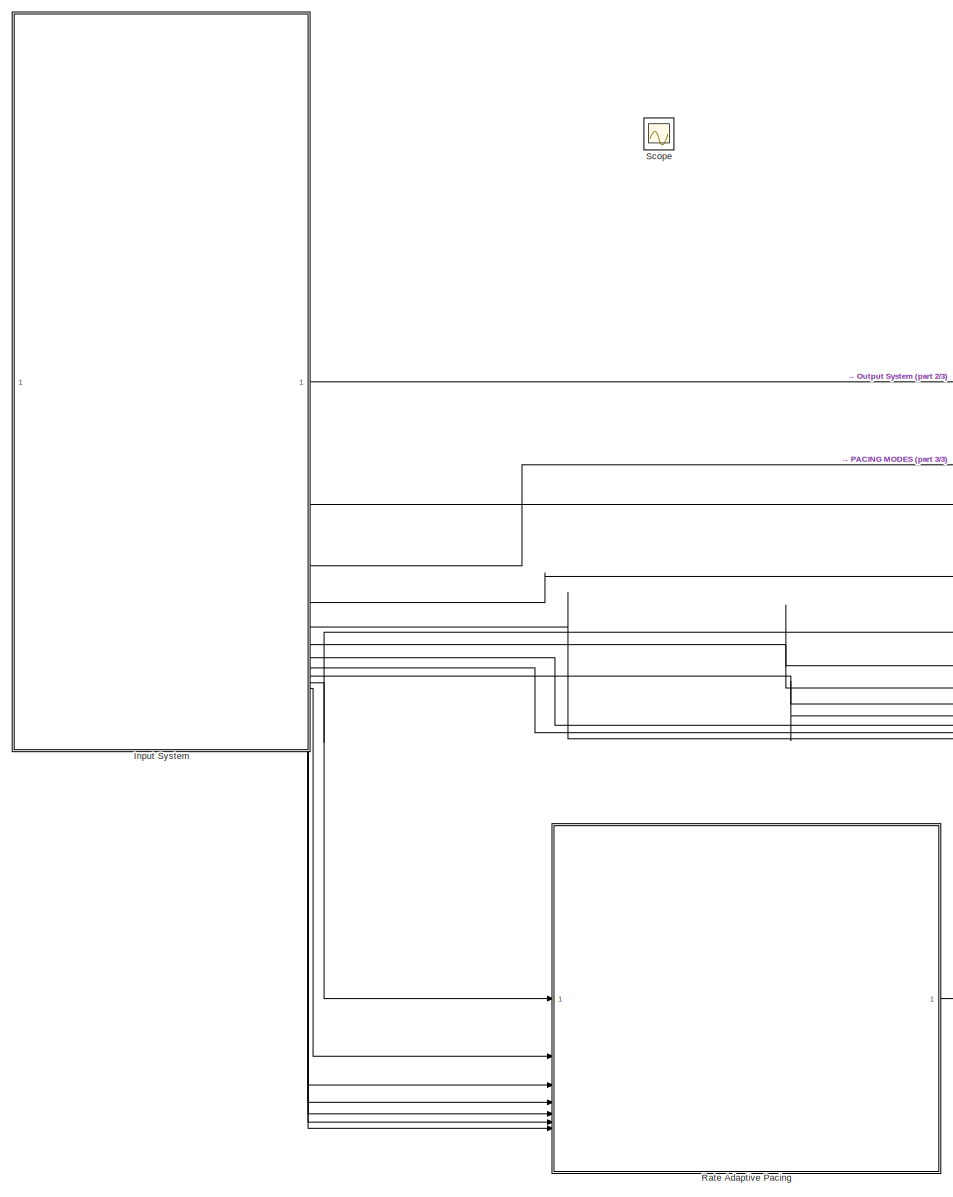
[diagram: root canvas - part 1/3, left side, full height]
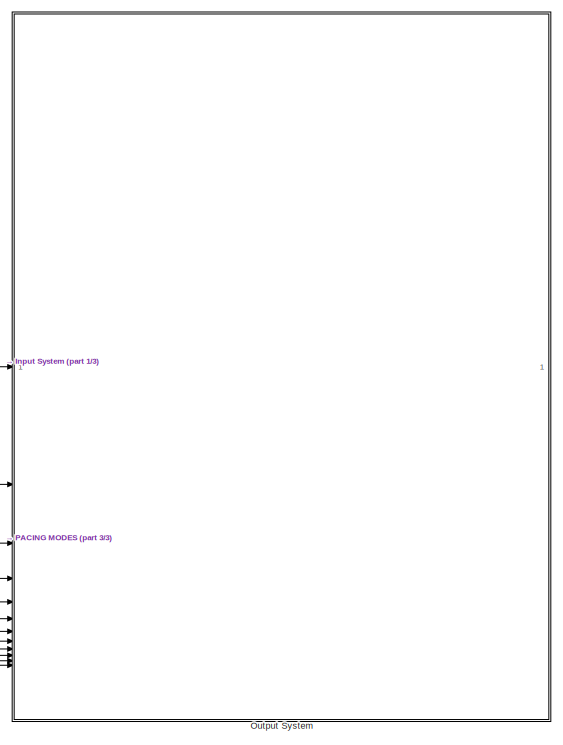
[diagram: root canvas - part 2/3, middle right region]
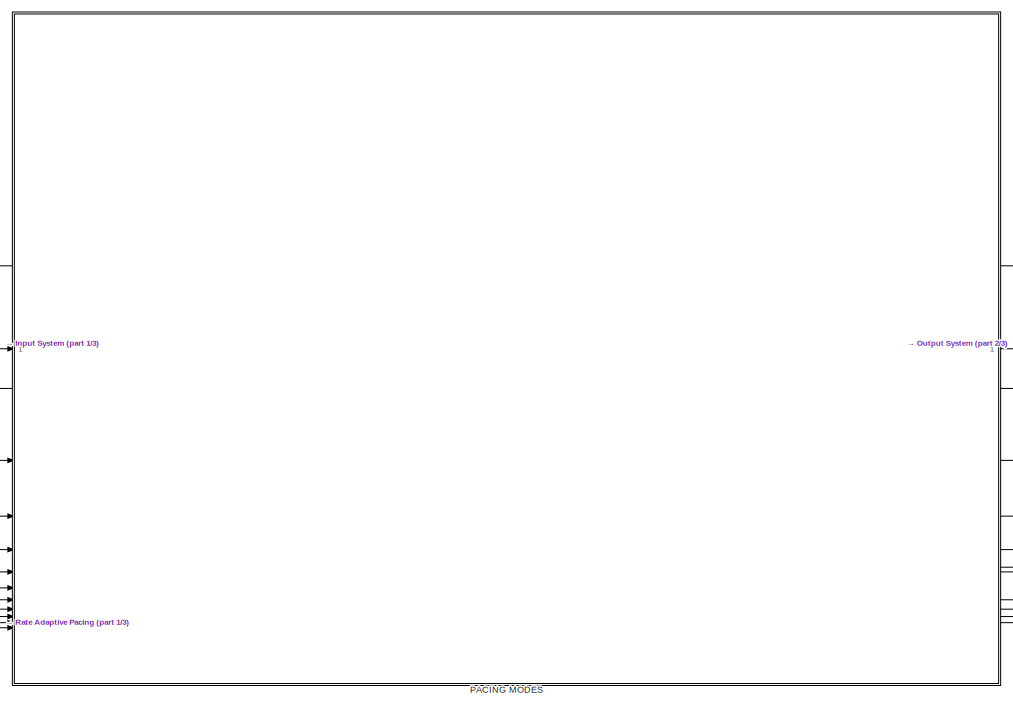
[diagram: root canvas - part 3/3, central region]
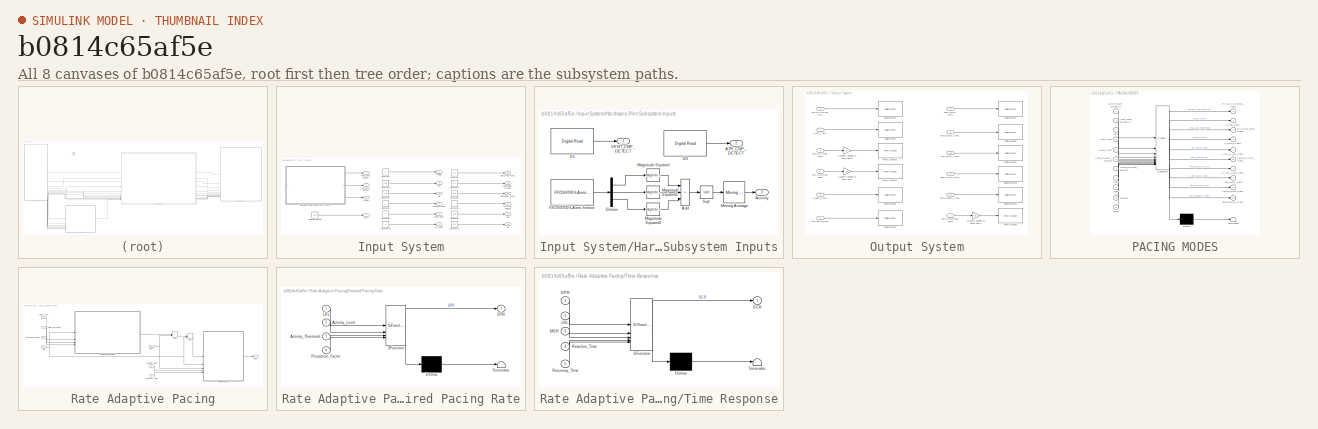
[diagram: thumbnail index - all 8 canvases of the model, root first then tree order]
MODEL slx_b0814c65af5e
KIND model
CONFIG AbsTol = auto
CONFIG EnableMultiTasking = on
CONFIG FixedStep = 1e-3
CONFIG MaxStep = auto
CONFIG MinStep = auto
CONFIG RelTol = 1e-3
CONFIG SampleTimeConstraint = Unconstrained
CONFIG SolverName = FixedStepAuto
CONFIG StartTime = 0.0
CONFIG StopTime = 10.0
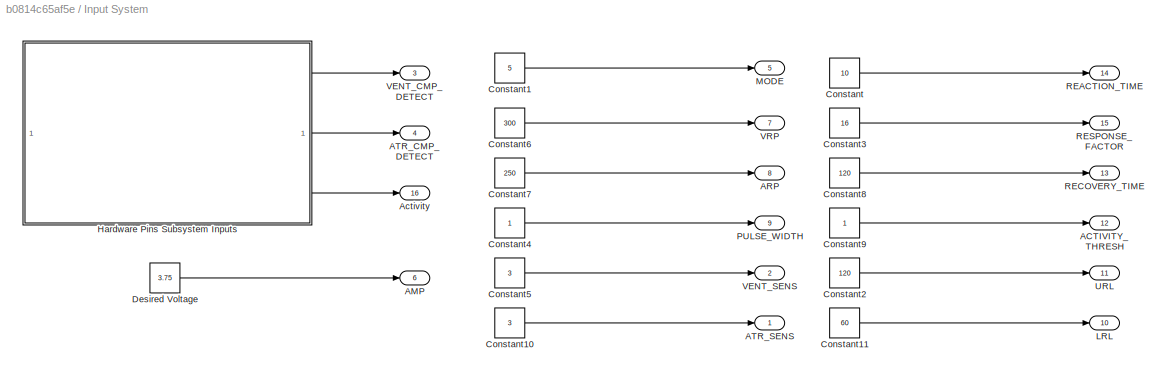
BLOCK [SubSystem] Input System
  PortSchema = {"entries":[{"content":{"sides":[{"content":{"connectorIds":[]},"type":"ConnectorPlacement.EquallySpacedRectSide","uuid":"45ebd703-b4df-41cd-9e83-fe3313ca0b4d"},{"content":{"connectorIds":["Out1","Out2","Out3","Out4","Out5","Out6","Out7","Out8","Out9","Out10","Out11"],"side":"RIGHT"},"type":"ConnectorPlacement.EquallySpacedRectSide","uuid":"2b734bef-70b4-43ed-906c-80eef9ddfa27"},{"content":{"conne...<+490ch>
BLOCK [Outport] Input System/ACTIVITY_THRESH
  Port = 12
BLOCK [Outport] Input System/AMP
  Port = 6
BLOCK [Outport] Input System/ARP
  Port = 8
BLOCK [Outport] Input System/ATR_CMP_DETECT
  Port = 4
BLOCK [Outport] Input System/ATR_SENS
BLOCK [Outport] Input System/Activity
  Port = 16
BLOCK [Constant] Input System/Constant
  Value = 10
BLOCK [Constant] Input System/Constant1
  Value = 5
BLOCK [Constant] Input System/Constant10
  Value = 3
BLOCK [Constant] Input System/Constant11
  Value = 60
BLOCK [Constant] Input System/Constant2
  Value = 120
BLOCK [Constant] Input System/Constant3
  Value = 16
BLOCK [Constant] Input System/Constant4
BLOCK [Constant] Input System/Constant5
  Value = 3
BLOCK [Constant] Input System/Constant6
  Value = 300
BLOCK [Constant] Input System/Constant7
  Value = 250
BLOCK [Constant] Input System/Constant8
  Value = 120
BLOCK [Constant] Input System/Constant9
BLOCK [Constant] Input System/Desired Voltage
  Value = 3.75
BLOCK [SubSystem] Input System/Hardware Pins Subsystem Inputs
BLOCK [Outport] Input System/Hardware Pins Subsystem Inputs/ATR_CMP_DETECT
  Port = 2
BLOCK [Outport] Input System/Hardware Pins Subsystem Inputs/Activity
  Port = 3
BLOCK [Sum] Input System/Hardware Pins Subsystem Inputs/Add
  IconShape = rectangular
  Inputs = +++
BLOCK [Reference] Input System/Hardware Pins Subsystem Inputs/D0  REF=frdmk64flib/Digital Read
  SourceBlock = frdmk64flib/Digital Read
  SourceType = freedomk64f.DigitalRead
BLOCK [Reference] Input System/Hardware Pins Subsystem Inputs/D1  REF=frdmk64flib/Digital Read
  SourceBlock = frdmk64flib/Digital Read
  SourceType = freedomk64f.DigitalRead
BLOCK [Demux] Input System/Hardware Pins Subsystem Inputs/Demux
  Outputs = 3
BLOCK [Reference] Input System/Hardware Pins Subsystem Inputs/FXOS8700 6-Axes Sensor  REF=frdmk64flib/FXOS8700 6-Axes Sensor
  SourceBlock = frdmk64flib/FXOS8700 6-Axes Sensor
  SourceType = freedomk64f.fxos8700
BLOCK [Math] Input System/Hardware Pins Subsystem Inputs/Magnitude Squared
  Operator = magnitude^2
BLOCK [Math] Input System/Hardware Pins Subsystem Inputs/Magnitude Squared1
  Operator = magnitude^2
BLOCK [Math] Input System/Hardware Pins Subsystem Inputs/Magnitude Squared2
  Operator = magnitude^2
BLOCK [Reference] Input System/Hardware Pins Subsystem Inputs/Moving Average  REF=dspstat3/Moving
Average
  SourceBlock = dspstat3/Moving\nAverage
  SourceType = dsp.simulink.MovingAverage
BLOCK [Sqrt] Input System/Hardware Pins Subsystem Inputs/Sqrt
BLOCK [Outport] Input System/Hardware Pins Subsystem Inputs/VENT_CMP_DETECT
BLOCK [Outport] Input System/LRL
  Port = 10
BLOCK [Outport] Input System/MODE
  Port = 5
BLOCK [Outport] Input System/PULSE_WIDTH
  Port = 9
BLOCK [Outport] Input System/REACTION_TIME
  Port = 14
BLOCK [Outport] Input System/RECOVERY_TIME
  Port = 13
BLOCK [Outport] Input System/RESPONSE_FACTOR
  Port = 15
BLOCK [Outport] Input System/URL
  Port = 11
BLOCK [Outport] Input System/VENT_CMP_DETECT
  Port = 3
BLOCK [Outport] Input System/VENT_SENS
  Port = 2
BLOCK [Outport] Input System/VRP
  Port = 7
BLOCK [SubSystem] Output System
BLOCK [Inport] Output System/ATR_CMP_REF_PWM
  OutDataTypeStr = double
BLOCK [Inport] Output System/ATR_GND_CTRL
  OutDataTypeStr = boolean
  Port = 10
BLOCK [Inport] Output System/ATR_PACE_CTRL
  OutDataTypeStr = boolean
  Port = 7
BLOCK [Gain] Output System/Convert voltage to PWM duty
  Gain = 20
BLOCK [Gain] Output System/Convert voltage to PWM duty1
  Gain = 20
BLOCK [Gain] Output System/Convert voltage to PWM duty2
  Gain = 20
BLOCK [Reference] Output System/Digital Write  REF=frdmk64flib/Digital Write
  SourceBlock = frdmk64flib/Digital Write
  SourceType = freedomk64f.DigitalWrite
BLOCK [Reference] Output System/Digital Write10  REF=frdmk64flib/Digital Write
  SourceBlock = frdmk64flib/Digital Write
  SourceType = freedomk64f.DigitalWrite
BLOCK [Reference] Output System/Digital Write11  REF=frdmk64flib/Digital Write
  SourceBlock = frdmk64flib/Digital Write
  SourceType = freedomk64f.DigitalWrite
BLOCK [Reference] Output System/Digital Write3  REF=frdmk64flib/Digital Write
  SourceBlock = frdmk64flib/Digital Write
  SourceType = freedomk64f.DigitalWrite
BLOCK [Reference] Output System/Digital Write5  REF=frdmk64flib/Digital Write
  SourceBlock = frdmk64flib/Digital Write
  SourceType = freedomk64f.DigitalWrite
BLOCK [Reference] Output System/Digital Write6  REF=frdmk64flib/Digital Write
  SourceBlock = frdmk64flib/Digital Write
  SourceType = freedomk64f.DigitalWrite
BLOCK [Reference] Output System/Digital Write7  REF=frdmk64flib/Digital Write
  SourceBlock = frdmk64flib/Digital Write
  SourceType = freedomk64f.DigitalWrite
BLOCK [Reference] Output System/Digital Write8  REF=frdmk64flib/Digital Write
  SourceBlock = frdmk64flib/Digital Write
  SourceType = freedomk64f.DigitalWrite
BLOCK [Reference] Output System/Digital Write9  REF=frdmk64flib/Digital Write
  SourceBlock = frdmk64flib/Digital Write
  SourceType = freedomk64f.DigitalWrite
BLOCK [Inport] Output System/FRONTEND_CTRL
  OutDataTypeStr = boolean
  Port = 12
BLOCK [Inport] Output System/PACE_CHARGE_CTRL
  OutDataTypeStr = boolean
  Port = 3
BLOCK [Inport] Output System/PACE_GND_CTRL
  OutDataTypeStr = boolean
  Port = 9
BLOCK [Inport] Output System/PACING_REF_PWM
  OutDataTypeStr = double
  Port = 5
BLOCK [Reference] Output System/PWM Output  REF=frdmk64flib/PWM Output
  SourceBlock = frdmk64flib/PWM Output
  SourceType = freedomk64f.PWMOutput
BLOCK [Reference] Output System/PWM Output1  REF=frdmk64flib/PWM Output
  SourceBlock = frdmk64flib/PWM Output
  SourceType = freedomk64f.PWMOutput
BLOCK [Reference] Output System/PWM Output2  REF=frdmk64flib/PWM Output
  SourceBlock = frdmk64flib/PWM Output
  SourceType = freedomk64f.PWMOutput
BLOCK [Inport] Output System/VENT_CMP_REF_PWM
  OutDataTypeStr = double
  Port = 2
BLOCK [Inport] Output System/VENT_GND_CTRL
  OutDataTypeStr = boolean
  Port = 11
BLOCK [Inport] Output System/VENT_PACE_CTRL
  OutDataTypeStr = boolean
  Port = 8
BLOCK [Inport] Output System/Z_ATR_CTRL
  OutDataTypeStr = boolean
  Port = 4
BLOCK [Inport] Output System/Z_VENT_CTRL
  OutDataTypeStr = boolean
  Port = 6
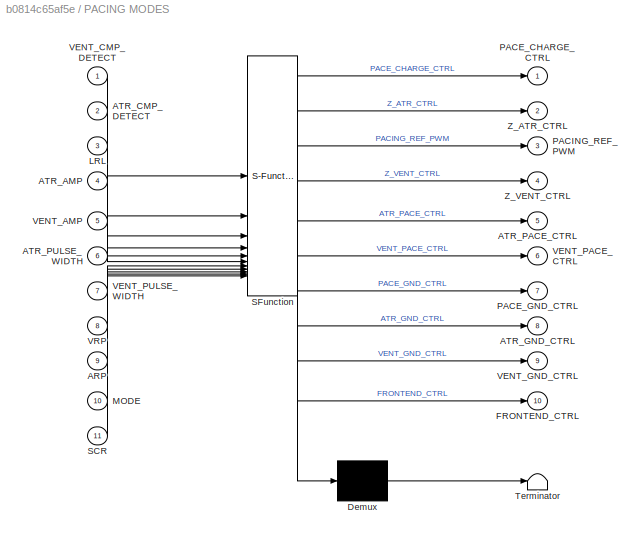
BLOCK [SubSystem] PACING MODES
  ErrorFcn = Stateflow.Translate.translate
  PermitHierarchicalResolution = ExplicitOnly
  PortSchema = {"entries":[{"content":{"sides":[{"content":{"connectorIds":["In1","In2","In10","In4","In5","In8","In9","In6","In7","In3","In11"]},"type":"ConnectorPlacement.EquallySpacedRectSide","uuid":"b9290718-055f-4c31-bc3d-b0976e8c48fd"},{"content":{"connectorIds":["Out1","Out2","Out3","Out4","Out5","Out6","Out7","Out8","Out9","Out10"],"side":"RIGHT"},"type":"ConnectorPlacement.EquallySpacedRectSide","uuid"...<+366ch>
  SFBlockType = Chart
  TreatAsAtomicUnit = on
BLOCK [Demux] PACING MODES/ Demux 
  Outputs = 1
BLOCK [S-Function] PACING MODES/ SFunction 
  EnableBusSupport = on
  FunctionName = sf_sfun
  PortCounts = [11 11]
  SFcnIsStateOwnerBlock = off
  SFunctionDeploymentMode = off
  Tag = Stateflow S-Function 1
BLOCK [Terminator] PACING MODES/ Terminator 
BLOCK [Inport] PACING MODES/ARP
  Port = 9
BLOCK [Inport] PACING MODES/ATR_AMP
  Port = 4
BLOCK [Inport] PACING MODES/ATR_CMP_DETECT
  Port = 2
BLOCK [Outport] PACING MODES/ATR_GND_CTRL
  Port = 8
BLOCK [Outport] PACING MODES/ATR_PACE_CTRL
  Port = 5
BLOCK [Inport] PACING MODES/ATR_PULSE_WIDTH
  Port = 6
BLOCK [Outport] PACING MODES/FRONTEND_CTRL
  Port = 10
BLOCK [Inport] PACING MODES/LRL
  Port = 3
BLOCK [Inport] PACING MODES/MODE
  Port = 10
BLOCK [Outport] PACING MODES/PACE_CHARGE_CTRL
BLOCK [Outport] PACING MODES/PACE_GND_CTRL
  Port = 7
BLOCK [Outport] PACING MODES/PACING_REF_PWM
  Port = 3
BLOCK [Inport] PACING MODES/SCR
  Port = 11
BLOCK [Inport] PACING MODES/VENT_AMP
  Port = 5
BLOCK [Inport] PACING MODES/VENT_CMP_DETECT
BLOCK [Outport] PACING MODES/VENT_GND_CTRL
  Port = 9
BLOCK [Outport] PACING MODES/VENT_PACE_CTRL
  Port = 6
BLOCK [Inport] PACING MODES/VENT_PULSE_WIDTH
  Port = 7
BLOCK [Inport] PACING MODES/VRP
  Port = 8
BLOCK [Outport] PACING MODES/Z_ATR_CTRL
  Port = 2
BLOCK [Outport] PACING MODES/Z_VENT_CTRL
  Port = 4
BLOCK [SubSystem] Rate Adaptive Pacing
BLOCK [Inport] Rate Adaptive Pacing/Activity_Level
  Port = 3
BLOCK [Inport] Rate Adaptive Pacing/Activity_Threshold
  Port = 7
BLOCK [SubSystem] Rate Adaptive Pacing/Desired Pacing Rate
  ErrorFcn = Stateflow.Translate.translate
  PermitHierarchicalResolution = ExplicitOnly
  PortSchema = {"entries":[{"content":{"sides":[{"content":{"connectorIds":["In2","In3","In4","In1"]},"type":"ConnectorPlacement.EquallySpacedRectSide","uuid":"33aa2080-336d-4d6c-812c-b5ea9681ec11"},{"content":{"connectorIds":["Out1"],"side":"RIGHT"},"type":"ConnectorPlacement.EquallySpacedRectSide","uuid":"cfe0aeac-177b-4a5f-b6eb-798f454e45d8"},{"content":{"connectorIds":[],"side":"TOP"},"type":"ConnectorPlacem...<+258ch>
  SFBlockType = Chart
  TreatAsAtomicUnit = on
BLOCK [Demux] Rate Adaptive Pacing/Desired Pacing Rate/ Demux 
  Outputs = 1
BLOCK [S-Function] Rate Adaptive Pacing/Desired Pacing Rate/ SFunction 
  EnableBusSupport = on
  FunctionName = sf_sfun
  PortCounts = [4 2]
  SFcnIsStateOwnerBlock = off
  SFunctionDeploymentMode = off
  Tag = Stateflow S-Function 2
BLOCK [Terminator] Rate Adaptive Pacing/Desired Pacing Rate/ Terminator 
BLOCK [Inport] Rate Adaptive Pacing/Desired Pacing Rate/Activity_Level
  Port = 2
BLOCK [Inport] Rate Adaptive Pacing/Desired Pacing Rate/Activity_Threshold
  Port = 3
BLOCK [Outport] Rate Adaptive Pacing/Desired Pacing Rate/DPR
BLOCK [Inport] Rate Adaptive Pacing/Desired Pacing Rate/LRL
BLOCK [Inport] Rate Adaptive Pacing/Desired Pacing Rate/Response_Factor
  Port = 4
BLOCK [Inport] Rate Adaptive Pacing/LRL
BLOCK [Inport] Rate Adaptive Pacing/MSR
  Port = 2
BLOCK [MinMax] Rate Adaptive Pacing/Max1
  Function = max
  Inputs = 2
BLOCK [MinMax] Rate Adaptive Pacing/Min1
  Inputs = 2
BLOCK [Inport] Rate Adaptive Pacing/Reaction_Time
  Port = 5
BLOCK [Inport] Rate Adaptive Pacing/Recovery_Time
  Port = 6
BLOCK [Inport] Rate Adaptive Pacing/Response_Factor
  Port = 4
BLOCK [Outport] Rate Adaptive Pacing/SCR
BLOCK [SubSystem] Rate Adaptive Pacing/Time Response
  ErrorFcn = Stateflow.Translate.translate
  PermitHierarchicalResolution = ExplicitOnly
  PortSchema = {"entries":[{"content":{"sides":[{"content":{"connectorIds":["In1","In3","In2","In4","In5"]},"type":"ConnectorPlacement.EquallySpacedRectSide","uuid":"81a22f8d-2685-4fa4-8a57-63f2ae3f28c3"},{"content":{"connectorIds":["Out1"],"side":"RIGHT"},"type":"ConnectorPlacement.EquallySpacedRectSide","uuid":"bea1df54-51e7-40e8-8545-e59ad927dd6d"},{"content":{"connectorIds":[],"side":"TOP"},"type":"Connector...<+264ch>
  SFBlockType = Chart
  TreatAsAtomicUnit = on
BLOCK [Demux] Rate Adaptive Pacing/Time Response/ Demux 
  Outputs = 1
BLOCK [S-Function] Rate Adaptive Pacing/Time Response/ SFunction 
  EnableBusSupport = on
  FunctionName = sf_sfun
  PortCounts = [5 2]
  SFcnIsStateOwnerBlock = off
  SFunctionDeploymentMode = off
  Tag = Stateflow S-Function 5
BLOCK [Terminator] Rate Adaptive Pacing/Time Response/ Terminator 
BLOCK [Inport] Rate Adaptive Pacing/Time Response/DPR
BLOCK [Inport] Rate Adaptive Pacing/Time Response/LRL
  Port = 2
BLOCK [Inport] Rate Adaptive Pacing/Time Response/MSR
  Port = 3
BLOCK [Inport] Rate Adaptive Pacing/Time Response/Reaction_Time
  Port = 4
BLOCK [Inport] Rate Adaptive Pacing/Time Response/Recovery_Time
  Port = 5
BLOCK [Outport] Rate Adaptive Pacing/Time Response/SCR
BLOCK [Scope] Scope
  Floating = off
  IOType = viewer
  NumInputPorts = 1
  ScopeSpecificationString = Simulink.scopes.TimeScopeBlockCfg('CurrentConfiguration', extmgr.ConfigurationSet(extmgr.Configuration('Core','General UI',true),extmgr.Configuration('Core','Source UI',true),extmgr.Configuration('Sources','WiredSimulink',true),extmgr.Configuration('Visuals','Time Domain',true,'SerializedDisplays',{struct('MinYLimReal','-1.00000','MaxYLimReal','1.00000','YLabelReal','','MinYLimMag','0.00000','MaxY...<+1351ch>
LINE Input System/Constant10:1 -> Input System/ATR_SENS:1
LINE Input System/Constant11:1 -> Input System/LRL:1
LINE Input System/Constant1:1 -> Input System/MODE:1
LINE Input System/Constant2:1 -> Input System/URL:1
LINE Input System/Constant3:1 -> Input System/RESPONSE_FACTOR:1
LINE Input System/Constant4:1 -> Input System/PULSE_WIDTH:1
LINE Input System/Constant5:1 -> Input System/VENT_SENS:1
LINE Input System/Constant6:1 -> Input System/VRP:1
LINE Input System/Constant7:1 -> Input System/ARP:1
LINE Input System/Constant8:1 -> Input System/RECOVERY_TIME:1
LINE Input System/Constant9:1 -> Input System/ACTIVITY_THRESH:1
LINE Input System/Constant:1 -> Input System/REACTION_TIME:1
LINE Input System/Desired Voltage:1 -> Input System/AMP:1
LINE Input System/Hardware Pins Subsystem Inputs/Add:1 -> Input System/Hardware Pins Subsystem Inputs/Sqrt:1
LINE Input System/Hardware Pins Subsystem Inputs/D0:1 -> Input System/Hardware Pins Subsystem Inputs/ATR_CMP_DETECT:1
LINE Input System/Hardware Pins Subsystem Inputs/D1:1 -> Input System/Hardware Pins Subsystem Inputs/VENT_CMP_DETECT:1
LINE Input System/Hardware Pins Subsystem Inputs/Demux:1 -> Input System/Hardware Pins Subsystem Inputs/Magnitude Squared:1
LINE Input System/Hardware Pins Subsystem Inputs/Demux:2 -> Input System/Hardware Pins Subsystem Inputs/Magnitude Squared1:1
LINE Input System/Hardware Pins Subsystem Inputs/Demux:3 -> Input System/Hardware Pins Subsystem Inputs/Magnitude Squared2:1
LINE Input System/Hardware Pins Subsystem Inputs/FXOS8700 6-Axes Sensor:1 -> Input System/Hardware Pins Subsystem Inputs/Demux:1
LINE Input System/Hardware Pins Subsystem Inputs/Magnitude Squared1:1 -> Input System/Hardware Pins Subsystem Inputs/Add:2
LINE Input System/Hardware Pins Subsystem Inputs/Magnitude Squared2:1 -> Input System/Hardware Pins Subsystem Inputs/Add:3
LINE Input System/Hardware Pins Subsystem Inputs/Magnitude Squared:1 -> Input System/Hardware Pins Subsystem Inputs/Add:1
LINE Input System/Hardware Pins Subsystem Inputs/Moving Average:1 -> Input System/Hardware Pins Subsystem Inputs/Activity:1
LINE Input System/Hardware Pins Subsystem Inputs/Sqrt:1 -> Input System/Hardware Pins Subsystem Inputs/Moving Average:1
LINE Input System/Hardware Pins Subsystem Inputs:1 -> Input System/VENT_CMP_DETECT:1
LINE Input System/Hardware Pins Subsystem Inputs:2 -> Input System/ATR_CMP_DETECT:1
LINE Input System/Hardware Pins Subsystem Inputs:3 -> Input System/Activity:1
LINE Input System:1 -> Output System:1
NET Input System:10 -> PACING MODES:3, Rate Adaptive Pacing:1
LINE Input System:11 -> Rate Adaptive Pacing:2
LINE Input System:12 -> Rate Adaptive Pacing:7
LINE Input System:13 -> Rate Adaptive Pacing:6
LINE Input System:14 -> Rate Adaptive Pacing:5
LINE Input System:15 -> Rate Adaptive Pacing:4
LINE Input System:16 -> Rate Adaptive Pacing:3
LINE Input System:2 -> Output System:2
LINE Input System:3 -> PACING MODES:1
LINE Input System:4 -> PACING MODES:2
LINE Input System:5 -> PACING MODES:10
NET Input System:6 -> PACING MODES:4, PACING MODES:5
LINE Input System:7 -> PACING MODES:8
LINE Input System:8 -> PACING MODES:9
NET Input System:9 -> PACING MODES:6, PACING MODES:7
LINE Output System/ATR_CMP_REF_PWM:1 -> Output System/Convert voltage to PWM duty:1
LINE Output System/ATR_GND_CTRL:1 -> Output System/Digital Write9:1
LINE Output System/ATR_PACE_CTRL:1 -> Output System/Digital Write6:1
LINE Output System/Convert voltage to PWM duty1:1 -> Output System/PWM Output:1
LINE Output System/Convert voltage to PWM duty2:1 -> Output System/PWM Output2:1
LINE Output System/Convert voltage to PWM duty:1 -> Output System/PWM Output1:1
LINE Output System/FRONTEND_CTRL:1 -> Output System/Digital Write11:1
LINE Output System/PACE_CHARGE_CTRL:1 -> Output System/Digital Write3:1
LINE Output System/PACE_GND_CTRL:1 -> Output System/Digital Write8:1
LINE Output System/PACING_REF_PWM:1 -> Output System/Convert voltage to PWM duty2:1
LINE Output System/VENT_CMP_REF_PWM:1 -> Output System/Convert voltage to PWM duty1:1
LINE Output System/VENT_GND_CTRL:1 -> Output System/Digital Write10:1
LINE Output System/VENT_PACE_CTRL:1 -> Output System/Digital Write7:1
LINE Output System/Z_ATR_CTRL:1 -> Output System/Digital Write:1
LINE Output System/Z_VENT_CTRL:1 -> Output System/Digital Write5:1
LINE PACING MODES:1 -> Output System:3
LINE PACING MODES:10 -> Output System:12
LINE PACING MODES:2 -> Output System:4
LINE PACING MODES:3 -> Output System:5
LINE PACING MODES:4 -> Output System:6
LINE PACING MODES:5 -> Output System:7
LINE PACING MODES:6 -> Output System:8
LINE PACING MODES:7 -> Output System:9
LINE PACING MODES:8 -> Output System:10
LINE PACING MODES:9 -> Output System:11
LINE Rate Adaptive Pacing/Activity_Level:1 -> Rate Adaptive Pacing/Desired Pacing Rate:2
LINE Rate Adaptive Pacing/Activity_Threshold:1 -> Rate Adaptive Pacing/Desired Pacing Rate:3
LINE Rate Adaptive Pacing/Desired Pacing Rate:1 -> Rate Adaptive Pacing/Min1:1
NET Rate Adaptive Pacing/LRL:1 -> Rate Adaptive Pacing/Desired Pacing Rate:1, Rate Adaptive Pacing/Max1:2, Rate Adaptive Pacing/Time Response:2
NET Rate Adaptive Pacing/MSR:1 -> Rate Adaptive Pacing/Min1:2, Rate Adaptive Pacing/Time Response:3
LINE Rate Adaptive Pacing/Max1:1 -> Rate Adaptive Pacing/Time Response:1
LINE Rate Adaptive Pacing/Min1:1 -> Rate Adaptive Pacing/Max1:1
LINE Rate Adaptive Pacing/Reaction_Time:1 -> Rate Adaptive Pacing/Time Response:4
LINE Rate Adaptive Pacing/Recovery_Time:1 -> Rate Adaptive Pacing/Time Response:5
LINE Rate Adaptive Pacing/Response_Factor:1 -> Rate Adaptive Pacing/Desired Pacing Rate:4
LINE Rate Adaptive Pacing/Time Response:1 -> Rate Adaptive Pacing/SCR:1
LINE Rate Adaptive Pacing:1 -> PACING MODES:11
note: NET lines group one-source signal fan-out (src -> all destinations, sorted); 1:1 wires keep LINE
CHART PACING MODES states=34 transitions=50
  STATE_LABEL 'INIT\nentry:\n% set parameters to false initially\nVENT_PACE_CTRL = false;\nPACE_GND_CTRL = false;\nATR_GND_CTRL = false;\nATR_PACE_CTRL = false;\nVENT_GND_CTRL = false;'
  STATE_LABEL 'MODE_SELECT\nentry:\n% based on mode go to pacing mode'
  STATE_LABEL 'AOO'
  STATE_LABEL 'AOO_PACING\n%Discharging C22 and charging C21\nentry:\n% Set control signals for atrial pacing\nPACE_CHARGE_CTRL = false; %disable charging\nPACE_GND_CTRL = true; %enable ground control for pacing (Safety)\nATR_PACE_CTRL = true; %enables atrial pacing\nATR_GND_CTRL = false; %disable ground control for atrial\n%impedance monitoring is not necessary so it is disabled\nZ_ATR_CTRL = false;\nZ_VENT_CTRL = false;'
  STATE_LABEL 'AOO_CHARGE\n%charge C22 and discharging C21\nentry:\n% Set control signals for charging\nPACE_GND_CTRL = true; %ground control enabled for pacing (for safety)\nATR_PACE_CTRL = false; %Disable atrial pacing while charging\nPACING_REF_PWM = ATR_AMP;\nPACE_CHARGE_CTRL = true; %enable charging for C22\n%enable\nATR_GND_CTRL = true; %enable ground (safety) in atrium while charging'
  STATE_LABEL '[after(60000/LRL - ATR_PULSE_WIDTH, msec)]%time delay after charginng the pacemaker'
  STATE_LABEL 'after(ATR_PULSE_WIDTH,msec)'
  STATE_LABEL 'AOO_PACING\n%Discharging C22 and charging C21\nentry:\n% Set control signals for atrial pacing\nPACE_CHARGE_CTRL = false; %disable charging\nPACE_GND_CTRL = true; %enable ground control for pacing (Safety)\nATR_PACE_CTRL = true; %enables atrial pacing\nATR_GND_CTRL = false; %disable ground control for atrial\n%impedance monitoring is not necessary so it is disabled\nZ_ATR_CTRL = false;\nZ_VENT_CTRL = false;'
  STATE_LABEL 'AOO_CHARGE\n%charge C22 and discharging C21\nentry:\n% Set control signals for charging\nPACE_GND_CTRL = true; %ground control enabled for pacing (for safety)\nATR_PACE_CTRL = false; %Disable atrial pacing while charging\nPACING_REF_PWM = ATR_AMP;\nPACE_CHARGE_CTRL = true; %enable charging for C22\n%enable\nATR_GND_CTRL = true; %enable ground (safety) in atrium while charging'
  STATE_LABEL 'VOO'
  STATE_LABEL 'VOO_Charge\n\nentry:\nVENT_PACE_CTRL = false;\nPACING_REF_PWM = VENT_AMP;\nPACE_CHARGE_CTRL = true;\n%\nPACE_GND_CTRL = true;\nVENT_GND_CTRL = true;\nZ_ATR_CTRL = false;\nZ_VENT_CTRL = false;\n'
  STATE_LABEL 'VOO_Pace\n\nentry:\nPACE_CHARGE_CTRL = false;\nPACE_GND_CTRL = true;\nVENT_GND_CTRL = false;\nVENT_PACE_CTRL = true;'
  STATE_LABEL '[after(VENT_PULSE_WIDTH, msec)]'
  STATE_LABEL '[after(60000/LRL - VENT_PULSE_WIDTH, msec)]%after charging'
  STATE_LABEL 'VOO_Charge\n\nentry:\nVENT_PACE_CTRL = false;\nPACING_REF_PWM = VENT_AMP;\nPACE_CHARGE_CTRL = true;\n%\nPACE_GND_CTRL = true;\nVENT_GND_CTRL = true;\nZ_ATR_CTRL = false;\nZ_VENT_CTRL = false;\n'
  STATE_LABEL 'VOO_Pace\n\nentry:\nPACE_CHARGE_CTRL = false;\nPACE_GND_CTRL = true;\nVENT_GND_CTRL = false;\nVENT_PACE_CTRL = true;'
  STATE_LABEL 'AAI'
  STATE_LABEL 'AAI_CHARGE\n%charge C22\nentry:\nFRONTEND_CTRL = true;\nATR_PACE_CTRL = false;\nPACING_REF_PWM = ATR_AMP;\nPACE_CHARGE_CTRL = true;\n%discharge C21\nPACE_GND_CTRL = true;\nATR_GND_CTRL = true;\nPULSE = 0;\n'
  STATE_LABEL 'AAI_PACING\nentry:\nPACE_CHARGE_CTRL = false;\nPACE_GND_CTRL = true;\nATR_PACE_CTRL = true;\nATR_GND_CTRL = false;'
  STATE_LABEL 'SENSE\n'
  STATE_LABEL 'AAI_REFRACTORY\nPULSE = 1;\n'
  STATE_LABEL '[after(ATR_PULSE_WIDTH, msec)]'
  STATE_LABEL '[after((60000/LRL)-ATR_PULSE_WIDTH-ARP,msec) & PULSE==1]'
  STATE_LABEL '[after((60000/LRL)-ATR_PULSE_WIDTH,msec) & PULSE==0]'
  STATE_LABEL '[after(ARP,msec)]'
  STATE_LABEL '[ATR_CMP_DETECT==1]'
  STATE_LABEL 'AAI_CHARGE\n%charge C22\nentry:\nFRONTEND_CTRL = true;\nATR_PACE_CTRL = false;\nPACING_REF_PWM = ATR_AMP;\nPACE_CHARGE_CTRL = true;\n%discharge C21\nPACE_GND_CTRL = true;\nATR_GND_CTRL = true;\nPULSE = 0;\n'
  STATE_LABEL 'AAI_PACING\nentry:\nPACE_CHARGE_CTRL = false;\nPACE_GND_CTRL = true;\nATR_PACE_CTRL = true;\nATR_GND_CTRL = false;'
  STATE_LABEL 'SENSE\n'
  STATE_LABEL 'AAI_REFRACTORY\nPULSE = 1;\n'
  STATE_LABEL 'VVI'
  STATE_LABEL 'VVI_CHARGE\n%charge C22\nentry:\nFRONTEND_CTRL = true;\nVENT_PACE_CTRL = false;\nPACING_REF_PWM = VENT_AMP;\nPACE_CHARGE_CTRL = true;\n%discharge C21\nPACE_GND_CTRL = true;\nVENT_GND_CTRL = true;\nPULSE = 0;\n'
  STATE_LABEL 'VVI_PACING\nentry:\nPACE_CHARGE_CTRL = false;\nPACE_GND_CTRL = true;\nVENT_PACE_CTRL = true;\nVENT_GND_CTRL = false;'
  STATE_LABEL 'SENSE\n'
  STATE_LABEL 'VVI_REFRACTORY\nPULSE = 1;\n'
  STATE_LABEL '[after(VENT_PULSE_WIDTH, msec)]'
  STATE_LABEL '[after((60000/LRL)-VENT_PULSE_WIDTH-VRP,msec) & PULSE==1]'
  STATE_LABEL '[after((60000/LRL)-VENT_PULSE_WIDTH,msec) & PULSE==0]'
  STATE_LABEL '[after(VRP,msec)]'
  STATE_LABEL '[VENT_CMP_DETECT==1]'
CHART Rate Adaptive Pacing/Desired Pacing Rate states=3 transitions=5
  STATE_LABEL 'INIT\n%Initialization\nentry:\nAL = Activity_Level;\nAT = Activity_Threshold;\nRF = Response_Factor;\nBP = LRL;\n'
  STATE_LABEL 'LOW_ACTIVITY_LEVEL\nentry:\nDPR = LRL;\n'
  STATE_LABEL 'DETERMINE_DPR\nentry:\nDPR= BP + abs(AL-AT)*RF;\n'
CHART Rate Adaptive Pacing/Time Response states=3 transitions=6
  STATE_LABEL 'INIT\nSCR = LRL;\nUPPER = MSR;\nLOWER = LRL;\ninc = (UPPER-LOWER)/(Reaction_Time*1000);\ndec = (UPPER-LOWER)/(Recovery_Time*1000);'
  STATE_LABEL 'DECREASE\nSCR = SCR - dec;'
  STATE_LABEL 'INCREASE\nSCR = SCR + inc;'
CHART  states=0 transitions=0
CHART  states=0 transitions=0
CHART  states=0 transitions=0
